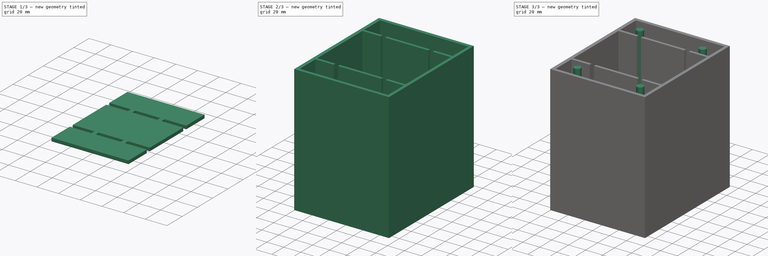
[diagram: build sequence overview — one tinted view per stage of 3, left to right]
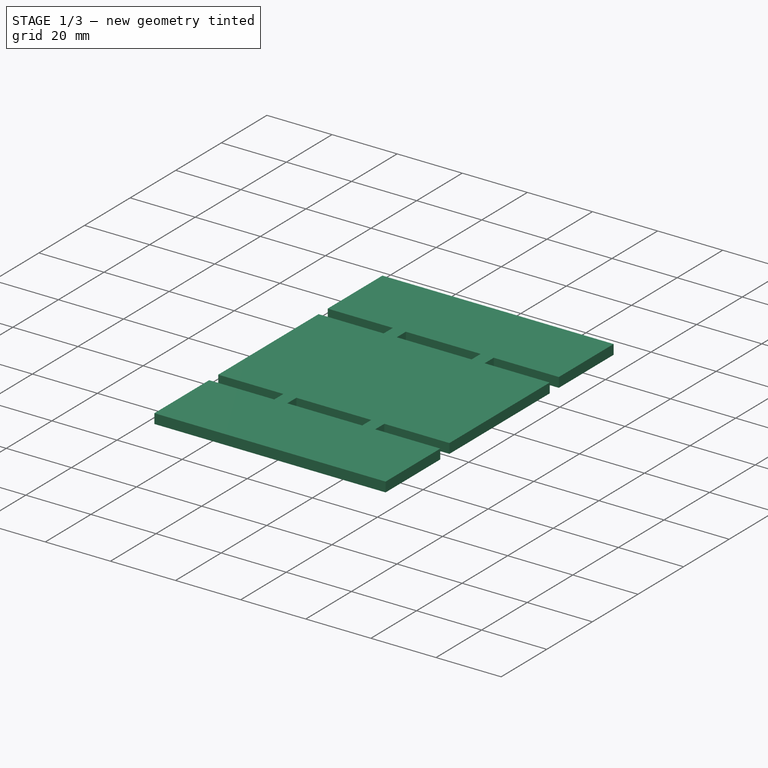
[diagram: stage 1 of 3 — iso view after this stage's code; geometry added in this stage tinted green]
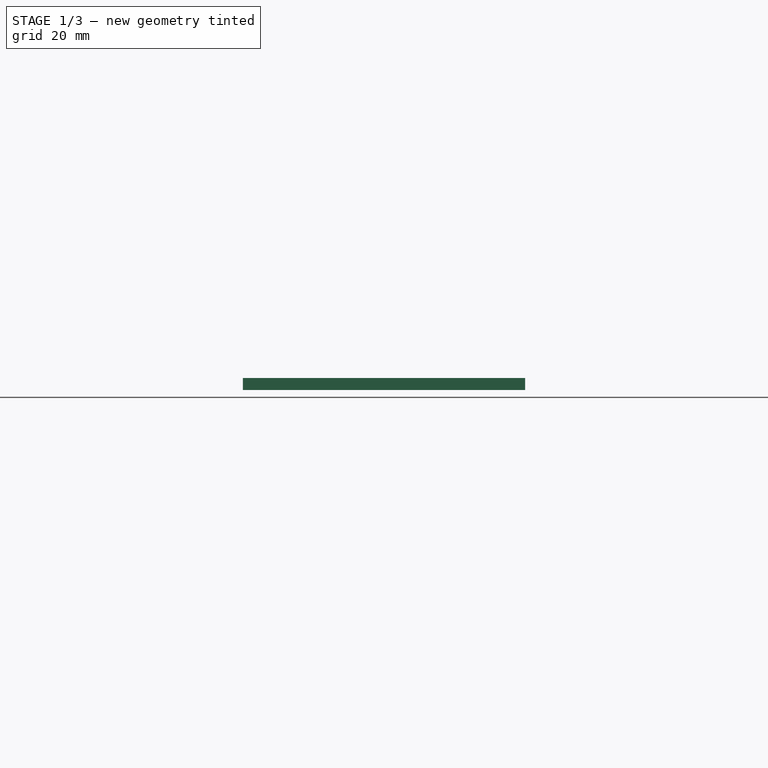
[diagram: stage 1 of 3 — front view after this stage's code; geometry added in this stage tinted green]
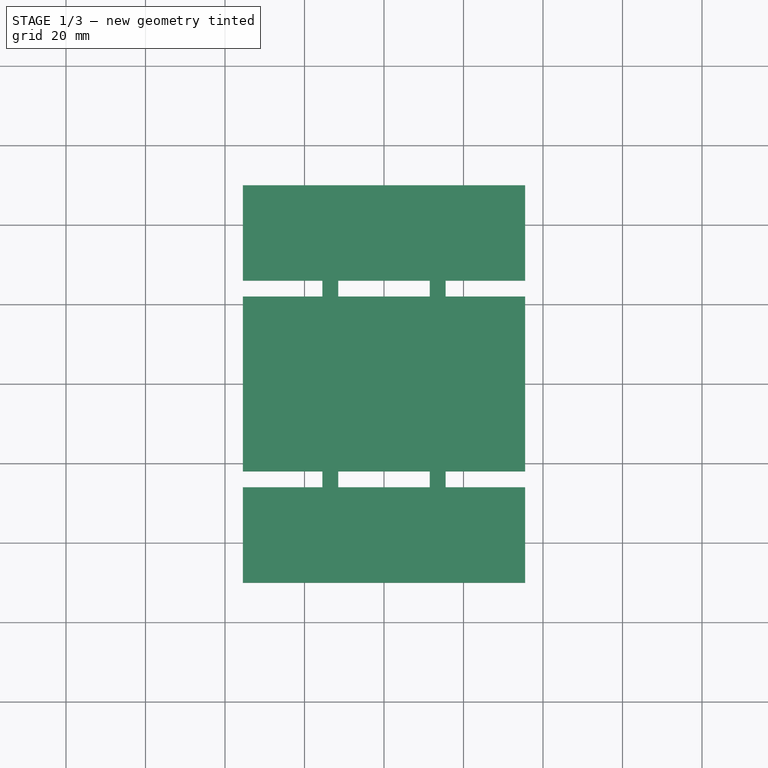
[diagram: stage 1 of 3 — top view after this stage's code; geometry added in this stage tinted green]
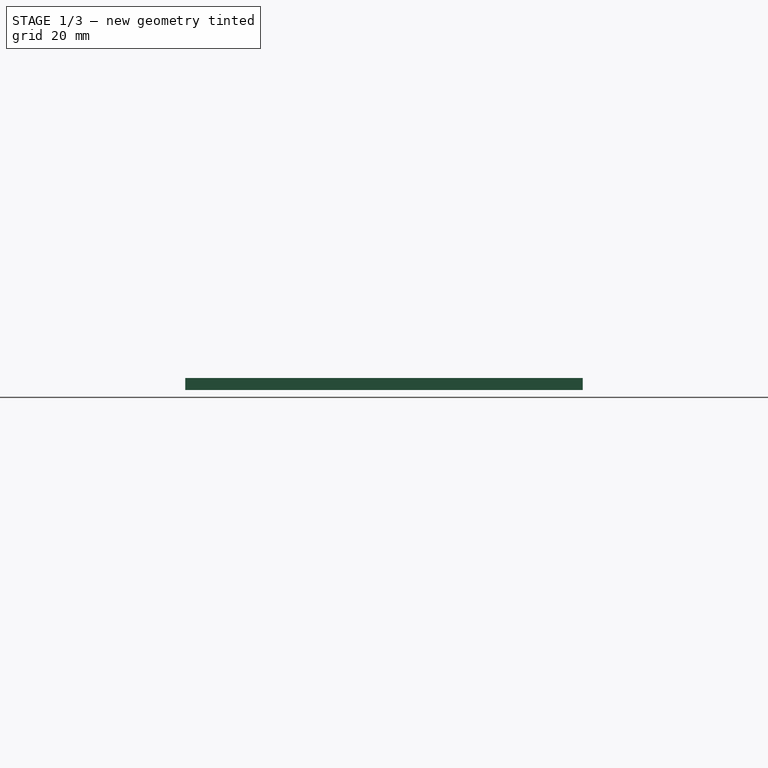
[diagram: stage 1 of 3 — right view after this stage's code; geometry added in this stage tinted green]
FCSTD DOCUMENT  (FreeCAD 0.19R)
Label: deck_in
License: All rights reserved
LicenseURL: http://en.wikipedia.org/wiki/All_rights_reserved
objects: Sketcher::SketchObject×10, PartDesign::Pad×5, PartDesign::Body×3, PartDesign::Pocket×2
note: 27 computed .brp shape members not serialized (recipe doc carries the construction recipe); baked Part::Feature solids carry a one-line shape summary decoded from their .brp

FEATURE [PartDesign::Body] Body  label="deck"
  Group = -> [Sketch002,Sketch003,Sketch,Sketch004,Sketch005,Sketch006,Sketch007,Pad001,Pocket,Pad002,Pad003]
  Origin = -> Origin
  Tip = -> Pad003
FEATURE [Sketcher::SketchObject] Sketch008  label="plateau001"
  FullyConstrained = true
  MapMode = 5
  Support = -> [XY_Plane001]
  sketch-geometry (7):
    g0: LineSegment StartX=-35.5 StartY=50 StartZ=0 EndX=35.5 EndY=50 EndZ=0
    g1: LineSegment StartX=35.5 StartY=50 StartZ=0 EndX=35.5 EndY=-50 EndZ=0
    g2: LineSegment StartX=35.5 StartY=-50 StartZ=0 EndX=-35.5 EndY=-50 EndZ=0
    g3: LineSegment StartX=-35.5 StartY=-50 StartZ=0 EndX=-35.5 EndY=50 EndZ=0
    g4: LineSegment StartX=-35.5 StartY=50 StartZ=0 EndX=35.5 EndY=-50 EndZ=0
    g5: LineSegment StartX=35.5 StartY=50 StartZ=0 EndX=-35.5 EndY=-50 EndZ=0
    g6: GeomPoint X=0 Y=0 Z=0
  constraints (17):
    c: Coincident(g0,g1)
    c: Coincident(g1,g2)
    c: Coincident(g2,g3)
    c: Coincident(g3,g0)
    c: Horizontal(g0)
    c: Horizontal(g2)
    c: Vertical(g1)
    c: Vertical(g3)
    c: DistanceY(g3,g3) = 100
    c: DistanceX(g0,g0) = 71
    c: Coincident(g4,g0)
    c: Coincident(g4,g1)
    c: Coincident(g5,g0)
    c: Coincident(g5,g2)
    c: PointOnObject(g6,g4)
    c: PointOnObject(g6,g5)
    c: Coincident(g6,g-1)
FEATURE [PartDesign::Pad] Pad004
  Direction = (1,1,100)
  Length = 3
  Length2 = 100
  Profile = -> Sketch008
  Type = 0
  expr: .Direction.z = 100
FEATURE [Sketcher::SketchObject] Sketch009  label="decoupe"
  ExternalGeometry = -> [Sketch008]
  FullyConstrained = false
  MapMode = 5
  Placement = pos=(0,0,3) rot=(0,0,1;0rad)
  Support = -> [Pad004]
  sketch-geometry (28):
    g0: LineSegment StartX=-35.5 StartY=26 StartZ=0 EndX=-15.5 EndY=26 EndZ=0
    g1: LineSegment StartX=-15.5 StartY=26 StartZ=0 EndX=-15.5 EndY=22 EndZ=0
    g2: LineSegment StartX=-15.5 StartY=22 StartZ=0 EndX=-35.5 EndY=22 EndZ=0
    g3: LineSegment StartX=-35.5 StartY=22 StartZ=0 EndX=-35.5 EndY=26 EndZ=0
    g4: LineSegment StartX=-11.5 StartY=26 StartZ=0 EndX=0 EndY=26 EndZ=0
    g5: LineSegment StartX=0 StartY=22 StartZ=0 EndX=-11.5 EndY=22 EndZ=0
    g6: LineSegment StartX=-11.5 StartY=22 StartZ=0 EndX=-11.5 EndY=26 EndZ=0
    g7: LineSegment StartX=35.5 StartY=26 StartZ=0 EndX=15.5 EndY=26 EndZ=0
    g8: LineSegment StartX=15.5 StartY=26 StartZ=0 EndX=15.5 EndY=22 EndZ=0
    g9: LineSegment StartX=15.5 StartY=22 StartZ=0 EndX=35.5 EndY=22 EndZ=0
    g10: LineSegment StartX=35.5 StartY=22 StartZ=0 EndX=35.5 EndY=26 EndZ=0
    g11: LineSegment StartX=11.5 StartY=26 StartZ=0 EndX=0 EndY=26 EndZ=0
    g12: LineSegment StartX=0 StartY=22 StartZ=0 EndX=11.5 EndY=22 EndZ=0
    g13: LineSegment StartX=11.5 StartY=22 StartZ=0 EndX=11.5 EndY=26 EndZ=0
    g14: LineSegment StartX=-35.5 StartY=-26 StartZ=0 EndX=-15.5 EndY=-26 EndZ=0
    g15: LineSegment StartX=-15.5 StartY=-26 StartZ=0 EndX=-15.5 EndY=-22 EndZ=0
    g16: LineSegment StartX=-15.5 StartY=-22 StartZ=0 EndX=-35.5 EndY=-22 EndZ=0
    g17: LineSegment StartX=-35.5 StartY=-22 StartZ=0 EndX=-35.5 EndY=-26 EndZ=0
    g18: LineSegment StartX=-11.5 StartY=-26 StartZ=0 EndX=0 EndY=-26 EndZ=0
    g19: LineSegment StartX=0 StartY=-22 StartZ=0 EndX=-11.5 EndY=-22 EndZ=0
    g20: LineSegment StartX=-11.5 StartY=-22 StartZ=0 EndX=-11.5 EndY=-26 EndZ=0
    g21: LineSegment StartX=35.5 StartY=-26 StartZ=0 EndX=15.5 EndY=-26 EndZ=0
    g22: LineSegment StartX=15.5 StartY=-26 StartZ=0 EndX=15.5 EndY=-22 EndZ=0
    g23: LineSegment StartX=15.5 StartY=-22 StartZ=0 EndX=35.5 EndY=-22 EndZ=0
    g24: LineSegment StartX=35.5 StartY=-22 StartZ=0 EndX=35.5 EndY=-26 EndZ=0
    g25: LineSegment StartX=11.5 StartY=-26 StartZ=0 EndX=0 EndY=-26 EndZ=0
    g26: LineSegment StartX=0 StartY=-22 StartZ=0 EndX=11.5 EndY=-22 EndZ=0
    g27: LineSegment StartX=11.5 StartY=-22 StartZ=0 EndX=11.5 EndY=-26 EndZ=0
  constraints (60):
    c: Coincident(g0,g1)
    c: Coincident(g1,g2)
    c: Coincident(g2,g3)
    c: Coincident(g3,g0)
    c: Horizontal(g0)
    c: Horizontal(g2)
    c: Vertical(g1)
    c: Vertical(g3)
    c: PointOnObject(g0,g-3)
    c: Coincident(g5,g6)
    c: Coincident(g6,g4)
    c: Horizontal(g4)
    c: Horizontal(g5)
    c: Vertical(g6)
    c: DistanceY(g0,g-4) = 24
    c: DistanceY(g0,g2) = -4
    c: DistanceX(g0,g0) = 20
    c: DistanceY(g0,g4) = 0
    c: DistanceY(g1,g5) = 0
    c: PointOnObject(g4,g-2)
    c: DistanceX(g0,g4) = 4
    c: Coincident(g7,g8)
    c: Coincident(g8,g9)
    c: Coincident(g9,g10)
    c: Coincident(g10,g7)
    c: Horizontal(g7)
    c: Horizontal(g9)
    c: Vertical(g8)
    c: Vertical(g10)
    c: Coincident(g12,g13)
    c: Coincident(g13,g11)
    c: Horizontal(g11)
    c: Horizontal(g12)
    c: Vertical(g13)
    c: Coincident(g14,g15)
    c: Coincident(g15,g16)
    c: Coincident(g16,g17)
    c: Coincident(g17,g14)
    c: Horizontal(g14)
    c: Horizontal(g16)
    c: Vertical(g15)
    c: Vertical(g17)
    c: Coincident(g19,g20)
    c: Coincident(g20,g18)
    c: Horizontal(g18)
    c: Horizontal(g19)
    c: Vertical(g20)
    c: Coincident(g21,g22)
    c: Coincident(g22,g23)
    c: Coincident(g23,g24)
    c: Coincident(g24,g21)
    c: Horizontal(g21)
    c: Horizontal(g23)
    c: Vertical(g22)
    c: Vertical(g24)
    c: Coincident(g26,g27)
    c: Coincident(g27,g25)
    c: Horizontal(g25)
    c: Horizontal(g26)
    c: Vertical(g27)
FEATURE [PartDesign::Pocket] Pocket001
  BaseFeature = -> Pad004
  Length = 5
  Length2 = 100
  Profile = -> Sketch009
  Type = 1
FEATURE [PartDesign::Body] Body002
  Group = -> [Sketch008,Sketch009,Pad004,Pocket001]
  Origin = -> Origin002
  Tip = -> Pocket001
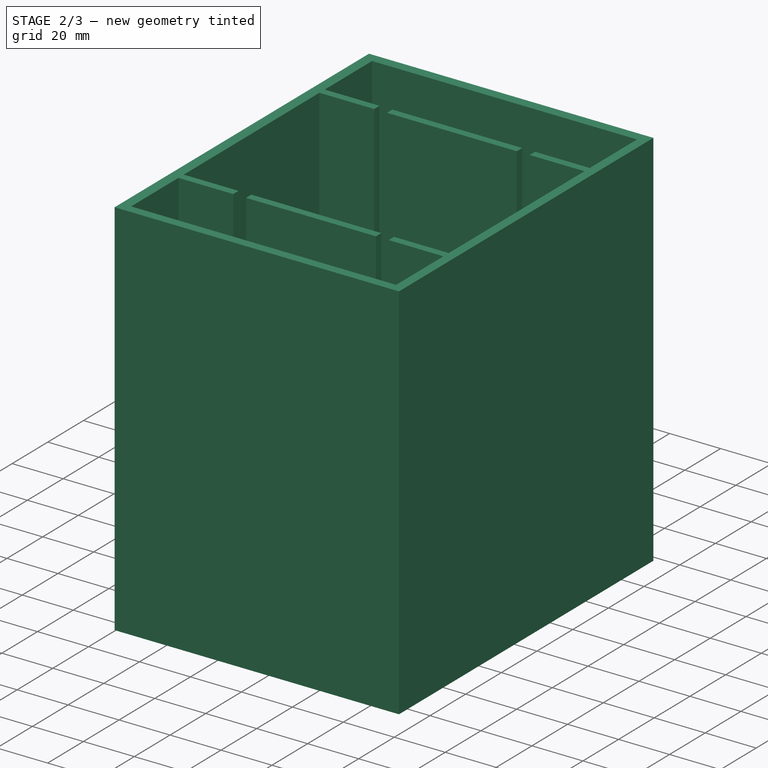
[diagram: stage 2 of 3 — iso view after this stage's code; geometry added in this stage tinted green]
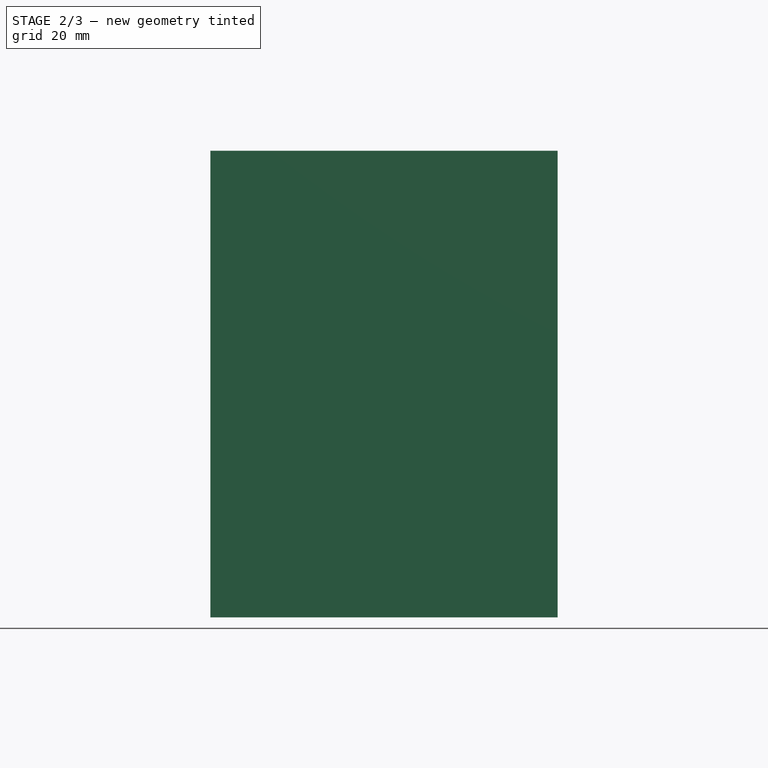
[diagram: stage 2 of 3 — front view after this stage's code; geometry added in this stage tinted green]
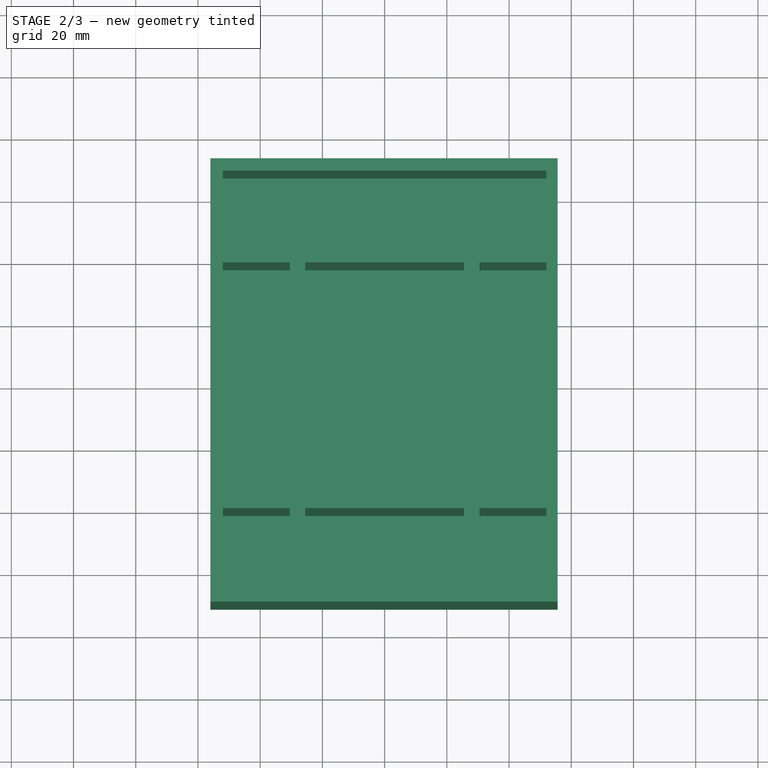
[diagram: stage 2 of 3 — top view after this stage's code; geometry added in this stage tinted green]
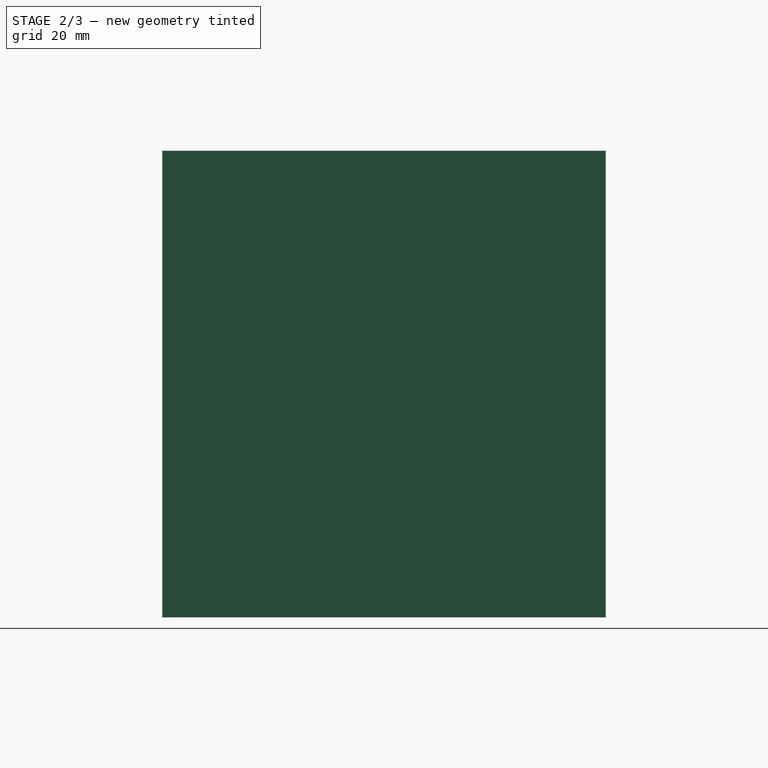
[diagram: stage 2 of 3 — right view after this stage's code; geometry added in this stage tinted green]
FEATURE [PartDesign::Body] Body001  label="card"
  Group = -> [Sketch001,Pad]
  Origin = -> Origin001
  Tip = -> Pad
FEATURE [Sketcher::SketchObject] Sketch002  label="plateau"
  FullyConstrained = true
  sketch-geometry (11):
    g0: LineSegment StartX=-50 StartY=35.5 StartZ=0 EndX=50 EndY=35.5 EndZ=0
    g1: LineSegment StartX=50 StartY=35.5 StartZ=0 EndX=50 EndY=-35.5 EndZ=0
    g2: LineSegment StartX=50 StartY=-35.5 StartZ=0 EndX=-50 EndY=-35.5 EndZ=0
    g3: LineSegment StartX=-50 StartY=-35.5 StartZ=0 EndX=-50 EndY=35.5 EndZ=0
    g4: LineSegment StartX=-50 StartY=35.5 StartZ=0 EndX=50 EndY=-35.5 EndZ=0
    g5: LineSegment StartX=50 StartY=35.5 StartZ=0 EndX=-50 EndY=-35.5 EndZ=0
    g6: GeomPoint X=0 Y=0 Z=0
    g7: LineSegment StartX=-50 StartY=65.5 StartZ=0 EndX=50 EndY=65.5 EndZ=0
    g8: LineSegment StartX=50 StartY=65.5 StartZ=0 EndX=50 EndY=-65.5 EndZ=0
    g9: LineSegment StartX=50 StartY=-65.5 StartZ=0 EndX=-50 EndY=-65.5 EndZ=0
    g10: LineSegment StartX=-50 StartY=-65.5 StartZ=0 EndX=-50 EndY=65.5 EndZ=0
  constraints (29):
    c: Coincident(g0,g1)
    c: Coincident(g1,g2)
    c: Coincident(g2,g3)
    c: Coincident(g3,g0)
    c: Horizontal(g0)
    c: Horizontal(g2)
    c: Vertical(g1)
    c: Vertical(g3)
    c: Coincident(g4,g0)
    c: Coincident(g4,g1)
    c: Coincident(g5,g2)
    c: PointOnObject(g6,g4)
    c: PointOnObject(g6,g5)
    c: Coincident(g6,g-1)
    c: Coincident(g5,g0)
    c: DistanceY(g2,g0) = 71
    c: DistanceX(g0,g0) = 100
    c: Coincident(g7,g8)
    c: Coincident(g8,g9)
    c: Coincident(g9,g10)
    c: Coincident(g10,g7)
    c: Horizontal(g7)
    c: Horizontal(g9)
    c: Vertical(g8)
    c: Vertical(g10)
    c: DistanceY(g0,g7) = 30
    c: DistanceX(g9,g2) = 0
    c: DistanceX(g8,g1) = 0
    c: DistanceY(g1,g8) = -30
FEATURE [Sketcher::SketchObject] Sketch003  label="découpe"
  ExternalGeometry = -> [Sketch002]
  FullyConstrained = false
  MapMode = 5
  Placement = pos=(0,0,150) rot=(0,0,1;0rad)
  sketch-geometry (24):
    g0: LineSegment StartX=-50 StartY=41.5 StartZ=0 EndX=-30 EndY=41.5 EndZ=0
    g1: LineSegment StartX=-30 StartY=41.5 StartZ=0 EndX=-30 EndY=37.5 EndZ=0
    g2: LineSegment StartX=-30 StartY=37.5 StartZ=0 EndX=-50 EndY=37.5 EndZ=0
    g3: LineSegment StartX=-50 StartY=37.5 StartZ=0 EndX=-50 EndY=41.5 EndZ=0
    g4: LineSegment StartX=50 StartY=41.5 StartZ=0 EndX=30 EndY=41.5 EndZ=0
    g5: LineSegment StartX=30 StartY=41.5 StartZ=0 EndX=30 EndY=37.5 EndZ=0
    g6: LineSegment StartX=30 StartY=37.5 StartZ=0 EndX=50 EndY=37.5 EndZ=0
    g7: LineSegment StartX=50 StartY=37.5 StartZ=0 EndX=50 EndY=41.5 EndZ=0
    g8: LineSegment StartX=-50 StartY=-41.5 StartZ=0 EndX=-30 EndY=-41.5 EndZ=0
    g9: LineSegment StartX=-30 StartY=-41.5 StartZ=0 EndX=-30 EndY=-37.5 EndZ=0
    g10: LineSegment StartX=-30 StartY=-37.5 StartZ=0 EndX=-50 EndY=-37.5 EndZ=0
    g11: LineSegment StartX=-50 StartY=-37.5 StartZ=0 EndX=-50 EndY=-41.5 EndZ=0
    g12: LineSegment StartX=50 StartY=-41.5 StartZ=0 EndX=30 EndY=-41.5 EndZ=0
    g13: LineSegment StartX=30 StartY=-41.5 StartZ=0 EndX=30 EndY=-37.5 EndZ=0
    g14: LineSegment StartX=30 StartY=-37.5 StartZ=0 EndX=50 EndY=-37.5 EndZ=0
    g15: LineSegment StartX=50 StartY=-37.5 StartZ=0 EndX=50 EndY=-41.5 EndZ=0
    g16: LineSegment StartX=-26 StartY=41.4901 StartZ=0 EndX=26 EndY=41.4901 EndZ=0
    g17: LineSegment StartX=26 StartY=41.4901 StartZ=0 EndX=26 EndY=37.4901 EndZ=0
    g18: LineSegment StartX=26 StartY=37.4901 StartZ=0 EndX=-26 EndY=37.4901 EndZ=0
    g19: LineSegment StartX=-26 StartY=37.4901 StartZ=0 EndX=-26 EndY=41.4901 EndZ=0
    g20: LineSegment StartX=-26 StartY=-41.4901 StartZ=0 EndX=26 EndY=-41.4901 EndZ=0
    g21: LineSegment StartX=26 StartY=-41.4901 StartZ=0 EndX=26 EndY=-37.4901 EndZ=0
    g22: LineSegment StartX=26 StartY=-37.4901 StartZ=0 EndX=-26 EndY=-37.4901 EndZ=0
    g23: LineSegment StartX=-26 StartY=-37.4901 StartZ=0 EndX=-26 EndY=-41.4901 EndZ=0
  constraints (53):
    c: Coincident(g0,g1)
    c: Coincident(g1,g2)
    c: Coincident(g2,g3)
    c: Coincident(g3,g0)
    c: Horizontal(g0)
    c: Horizontal(g2)
    c: Vertical(g1)
    c: Vertical(g3)
    c: DistanceY(g0,g-4) = 24
    c: DistanceY(g0,g2) = -4
    c: DistanceX(g2,g1) = 20
    c: PointOnObject(g2,g-4)
    c: Coincident(g4,g5)
    c: Coincident(g5,g6)
    c: Coincident(g6,g7)
    c: Coincident(g7,g4)
    c: Horizontal(g4)
    c: Horizontal(g6)
    c: Vertical(g5)
    c: Vertical(g7)
    c: Coincident(g8,g9)
    c: Coincident(g9,g10)
    c: Coincident(g10,g11)
    c: Coincident(g11,g8)
    c: Horizontal(g8)
    c: Horizontal(g10)
    c: Vertical(g9)
    c: Vertical(g11)
    c: Coincident(g12,g13)
    c: Coincident(g13,g14)
    c: Coincident(g14,g15)
    c: Coincident(g15,g12)
    c: Horizontal(g12)
    c: Horizontal(g14)
    c: Vertical(g13)
    c: Vertical(g15)
    c: Coincident(g16,g17)
    c: Coincident(g17,g18)
    c: Coincident(g18,g19)
    c: Coincident(g19,g16)
    c: Horizontal(g18)
    c: Vertical(g17)
    c: Vertical(g19)
    c: DistanceY(g16,g18) = -4
    c: Symmetric(g16,g16,g-2)
    c: DistanceX(g16,g16) = 52
    c: Coincident(g20,g21)
    c: Coincident(g21,g22)
    c: Coincident(g22,g23)
    c: Coincident(g23,g20)
    c: Horizontal(g22)
    c: Vertical(g21)
    c: Vertical(g23)
FEATURE [Sketcher::SketchObject] Sketch  label="CONTOUR"
  ExternalGeometry = -> [Sketch003]
  FullyConstrained = false
  MapMode = 5
  Support = -> [XY_Plane]
  sketch-geometry (38):
    g0: LineSegment StartX=-52 StartY=67.5 StartZ=0 EndX=52 EndY=67.5 EndZ=0
    g1: LineSegment StartX=52 StartY=-67.5 StartZ=0 EndX=-52 EndY=-67.5 EndZ=0
    g2: LineSegment StartX=-25.5 StartY=40.9901 StartZ=0 EndX=25.5 EndY=40.9901 EndZ=0
    g3: LineSegment StartX=25.5 StartY=40.9901 StartZ=0 EndX=25.5 EndY=37.9901 EndZ=0
    g4: LineSegment StartX=25.5 StartY=37.9901 StartZ=0 EndX=-25.5 EndY=37.9901 EndZ=0
    g5: LineSegment StartX=-25.5 StartY=37.9901 StartZ=0 EndX=-25.5 EndY=40.9901 EndZ=0
    g6: LineSegment StartX=30.5 StartY=41 StartZ=0 EndX=52 EndY=41 EndZ=0
    g7: LineSegment StartX=52 StartY=38 StartZ=0 EndX=30.5 EndY=38 EndZ=0
    g8: LineSegment StartX=30.5 StartY=38 StartZ=0 EndX=30.5 EndY=41 EndZ=0
    g9: LineSegment StartX=-52 StartY=41 StartZ=0 EndX=-30.5 EndY=41 EndZ=0
    g10: LineSegment StartX=-30.5 StartY=41 StartZ=0 EndX=-30.5 EndY=38 EndZ=0
    g11: LineSegment StartX=-25.5 StartY=-40.9901 StartZ=0 EndX=25.5 EndY=-40.9901 EndZ=0
    g12: LineSegment StartX=25.5 StartY=-40.9901 StartZ=0 EndX=25.5 EndY=-37.9901 EndZ=0
    g13: LineSegment StartX=25.5 StartY=-37.9901 StartZ=0 EndX=-25.5 EndY=-37.9901 EndZ=0
    g14: LineSegment StartX=-25.5 StartY=-37.9901 StartZ=0 EndX=-25.5 EndY=-40.9901 EndZ=0
    g15: LineSegment StartX=30.5 StartY=-41 StartZ=0 EndX=52 EndY=-41 EndZ=0
    g16: LineSegment StartX=52 StartY=-38 StartZ=0 EndX=30.5 EndY=-38 EndZ=0
    g17: LineSegment StartX=30.5 StartY=-38 StartZ=0 EndX=30.5 EndY=-41 EndZ=0
    g18: LineSegment StartX=-52 StartY=-41 StartZ=0 EndX=-30.5 EndY=-41 EndZ=0
    g19: LineSegment StartX=-30.5 StartY=-41 StartZ=0 EndX=-30.5 EndY=-38 EndZ=0
    g20: LineSegment StartX=-30.5 StartY=-38 StartZ=0 EndX=-52 EndY=-38 EndZ=0
    g21: Circle CenterX=-37 CenterY=-52.5 CenterZ=0 NormalX=0 NormalY=0 NormalZ=1 AngleXU=0 Radius=4
    g22: Circle CenterX=37 CenterY=-52.5 CenterZ=0 NormalX=0 NormalY=0 NormalZ=1 AngleXU=0 Radius=4
    g23: Circle CenterX=-37 CenterY=52.5 CenterZ=0 NormalX=0 NormalY=0 NormalZ=1 AngleXU=0 Radius=4
    g24: Circle CenterX=37 CenterY=52.5 CenterZ=0 NormalX=0 NormalY=0 NormalZ=1 AngleXU=0 Radius=4
    g25: LineSegment StartX=-56 StartY=71.5 StartZ=0 EndX=55.6057 EndY=71.5 EndZ=0
    g26: LineSegment StartX=55.6057 StartY=71.5 StartZ=0 EndX=55.6057 EndY=-71.0723 EndZ=0
    g27: LineSegment StartX=55.6057 StartY=-71.0723 StartZ=0 EndX=-56 EndY=-71.0723 EndZ=0
    g28: LineSegment StartX=-56 StartY=-71.0723 StartZ=0 EndX=-56 EndY=71.5 EndZ=0
    g29: LineSegment StartX=-52 StartY=-41 StartZ=0 EndX=-52 EndY=-67.5 EndZ=0
    g30: LineSegment StartX=-52 StartY=38 StartZ=0 EndX=-52 EndY=-38 EndZ=0
    g31: LineSegment StartX=-30.5 StartY=41 StartZ=0 EndX=-52 EndY=41 EndZ=0
    g32: LineSegment StartX=-52 StartY=-67.5 StartZ=0 EndX=52 EndY=-67.5 EndZ=0
    g33: LineSegment StartX=52 StartY=-38 StartZ=0 EndX=52 EndY=38 EndZ=0
    g34: LineSegment StartX=52 StartY=67.5 StartZ=0 EndX=52 EndY=41 EndZ=0
    g35: LineSegment StartX=-52 StartY=67.5 StartZ=0 EndX=-52 EndY=41 EndZ=0
    g36: LineSegment StartX=52 StartY=-41 StartZ=0 EndX=52 EndY=-67.5 EndZ=0
    g37: LineSegment StartX=-30.5 StartY=38 StartZ=0 EndX=-52 EndY=38 EndZ=0
  constraints (54):
    c: Horizontal(g0)
    c: DistanceY(g1,g-4) = 26
    c: Coincident(g2,g3)
    c: Coincident(g3,g4)
    c: Coincident(g4,g5)
    c: Coincident(g5,g2)
    c: Horizontal(g2)
    c: Horizontal(g4)
    c: Vertical(g3)
    c: Vertical(g5)
    c: DistanceX(g-14,g2) = 0.5
    c: DistanceY(g2,g-14) = 0.5
    c: DistanceY(g4,g2) = 3
    c: DistanceX(g2,g-13) = 0.5
    c: Coincident(g11,g12)
    c: Coincident(g12,g13)
    c: Coincident(g13,g14)
    c: Coincident(g14,g11)
    c: Horizontal(g11)
    c: Horizontal(g13)
    c: Vertical(g12)
    c: Vertical(g14)
    c: Horizontal(g18)
    c: Vertical(g19)
    c: DistanceX(g1,g21) = 15
    c: DistanceY(g1,g21) = 15
    c: Radius(g21) = 4
    c: Radius(g22) = 4
    c: Radius(g23) = 4
    c: Radius(g24) = 4
    c: Coincident(g25,g26)
    c: Coincident(g26,g27)
    c: Coincident(g27,g28)
    c: Coincident(g28,g25)
    c: Horizontal(g25)
    c: Horizontal(g27)
    c: Vertical(g26)
    c: Vertical(g28)
    c: DistanceX(g25,g0) = 4
    c: DistanceY(g0,g25) = 4
    c: Vertical(g29)
    c: Coincident(g1,g32)
    c: Coincident(g9,g31)
    c: Coincident(g35,g0)
    c: Coincident(g35,g9)
    c: Vertical(g35)
    c: Coincident(g17,g16)
    c: Coincident(g16,g33)
    c: Coincident(g36,g15)
    c: Coincident(g36,g1)
    c: Vertical(g36)
    c: Coincident(g37,g10)
    c: Coincident(g37,g30)
    c: Horizontal(g37)
FEATURE [Sketcher::SketchObject] Sketch006  label="cloison ext"
  ExternalGeometry = -> [Sketch]
  FullyConstrained = true
  MapMode = 5
  Support = -> [XY_Plane]
  sketch-geometry (4):
    g0: LineSegment StartX=-56 StartY=71.5 StartZ=0 EndX=55.6057 EndY=71.5 EndZ=0
    g1: LineSegment StartX=55.6057 StartY=71.5 StartZ=0 EndX=55.6057 EndY=-71.0723 EndZ=0
    g2: LineSegment StartX=55.6057 StartY=-71.0723 StartZ=0 EndX=-56 EndY=-71.0723 EndZ=0
    g3: LineSegment StartX=-56 StartY=-71.0723 StartZ=0 EndX=-56 EndY=71.5 EndZ=0
  constraints (10):
    c: Coincident(g0,g1)
    c: Coincident(g1,g2)
    c: Coincident(g2,g3)
    c: Coincident(g3,g0)
    c: Horizontal(g0)
    c: Horizontal(g2)
    c: Vertical(g1)
    c: Vertical(g3)
    c: Coincident(g-4,g1)
    c: Coincident(g0,g-3)
FEATURE [PartDesign::Pad] Pad001
  Direction = (1,1,1)
  Length = 150
  Length2 = 100
  Profile = -> Sketch006
  Type = 0
FEATURE [Sketcher::SketchObject] Sketch007  label="cloison int"
  ExternalGeometry = -> [Sketch]
  FullyConstrained = true
  MapMode = 5
  Placement = pos=(0,0,150) rot=(0,0,1;0rad)
  Support = -> [Pad001]
  sketch-geometry (20):
    g0: LineSegment StartX=-52 StartY=67.5 StartZ=0 EndX=-52 EndY=41 EndZ=0
    g1: LineSegment StartX=-52 StartY=41 StartZ=0 EndX=-30.5 EndY=41 EndZ=0
    g2: LineSegment StartX=-30.5 StartY=41 StartZ=0 EndX=-30.5 EndY=38 EndZ=0
    g3: LineSegment StartX=-30.5 StartY=38 StartZ=0 EndX=-52 EndY=38 EndZ=0
    g4: LineSegment StartX=-52 StartY=38 StartZ=0 EndX=-52 EndY=-38 EndZ=0
    g5: LineSegment StartX=-52 StartY=-38 StartZ=0 EndX=-30.5 EndY=-38 EndZ=0
    g6: LineSegment StartX=-30.5 StartY=-38 StartZ=0 EndX=-30.5 EndY=-41 EndZ=0
    g7: LineSegment StartX=-30.5 StartY=-41 StartZ=0 EndX=-52 EndY=-41 EndZ=0
    g8: LineSegment StartX=-52 StartY=-41 StartZ=0 EndX=-52 EndY=-67.5 EndZ=0
    g9: LineSegment StartX=-52 StartY=-67.5 StartZ=0 EndX=52 EndY=-67.5 EndZ=0
    g10: LineSegment StartX=52 StartY=-67.5 StartZ=0 EndX=52 EndY=-41 EndZ=0
    g11: LineSegment StartX=52 StartY=-41 StartZ=0 EndX=30.5 EndY=-41 EndZ=0
    g12: LineSegment StartX=30.5 StartY=-41 StartZ=0 EndX=30.5 EndY=-38 EndZ=0
    g13: LineSegment StartX=30.5 StartY=-38 StartZ=0 EndX=52 EndY=-38 EndZ=0
    g14: LineSegment StartX=52 StartY=-38 StartZ=0 EndX=52 EndY=38 EndZ=0
    g15: LineSegment StartX=52 StartY=38 StartZ=0 EndX=30.5 EndY=38 EndZ=0
    g16: LineSegment StartX=30.5 StartY=38 StartZ=0 EndX=30.5 EndY=41 EndZ=0
    g17: LineSegment StartX=30.5 StartY=41 StartZ=0 EndX=52 EndY=41 EndZ=0
    g18: LineSegment StartX=52 StartY=41 StartZ=0 EndX=52 EndY=67.5 EndZ=0
    g19: LineSegment StartX=52 StartY=67.5 StartZ=0 EndX=-52 EndY=67.5 EndZ=0
  constraints (40):
    c: Coincident(g-5,g0)
    c: Coincident(g0,g-3)
    c: Coincident(g0,g1)
    c: Coincident(g1,g-3)
    c: Coincident(g1,g2)
    c: Coincident(g2,g-4)
    c: Coincident(g2,g3)
    c: Coincident(g3,g-4)
    c: Coincident(g3,g4)
    c: Coincident(g4,g-12)
    c: Coincident(g4,g5)
    c: Coincident(g5,g-12)
    c: Coincident(g5,g6)
    c: Coincident(g6,g-11)
    c: Coincident(g6,g7)
    c: Coincident(g7,g-11)
    c: Coincident(g7,g8)
    c: Coincident(g8,g-10)
    c: Coincident(g8,g9)
    c: Coincident(g9,g-10)
    c: Coincident(g9,g10)
    c: Coincident(g10,g-9)
    c: Coincident(g10,g11)
    c: Coincident(g11,g-9)
    c: Coincident(g11,g12)
    c: Coincident(g12,g-8)
    c: Coincident(g12,g13)
    c: Coincident(g13,g-8)
    c: Coincident(g13,g14)
    c: Coincident(g14,g-7)
    c: Coincident(g14,g15)
    c: Coincident(g15,g-7)
    c: Coincident(g15,g16)
    c: Coincident(g16,g-6)
    c: Coincident(g16,g17)
    c: Coincident(g17,g-6)
    c: Coincident(g17,g18)
    c: Coincident(g18,g-5)
    c: Coincident(g18,g19)
    c: Coincident(g19,g0)
FEATURE [PartDesign::Pocket] Pocket
  BaseFeature = -> Pad001
  Length = 145
  Length2 = 100
  Profile = -> Sketch007
  Type = 0
FEATURE [Sketcher::SketchObject] Sketch005  label="mur int"
  ExternalGeometry = -> [Sketch]
  FullyConstrained = true
  MapMode = 5
  Placement = pos=(0,0,5) rot=(0,0,1;0rad)
  Support = -> [Pocket]
  sketch-geometry (8):
    g0: LineSegment StartX=-25.5 StartY=40.9901 StartZ=0 EndX=25.5 EndY=40.9901 EndZ=0
    g1: LineSegment StartX=25.5 StartY=40.9901 StartZ=0 EndX=25.5 EndY=37.9901 EndZ=0
    g2: LineSegment StartX=25.5 StartY=37.9901 StartZ=0 EndX=-25.5 EndY=37.9901 EndZ=0
    g3: LineSegment StartX=-25.5 StartY=37.9901 StartZ=0 EndX=-25.5 EndY=40.9901 EndZ=0
    g4: LineSegment StartX=-25.5 StartY=-37.9901 StartZ=0 EndX=25.5 EndY=-37.9901 EndZ=0
    g5: LineSegment StartX=25.5 StartY=-37.9901 StartZ=0 EndX=25.5 EndY=-40.9901 EndZ=0
    g6: LineSegment StartX=25.5 StartY=-40.9901 StartZ=0 EndX=-25.5 EndY=-40.9901 EndZ=0
    g7: LineSegment StartX=-25.5 StartY=-40.9901 StartZ=0 EndX=-25.5 EndY=-37.9901 EndZ=0
  constraints (20):
    c: Coincident(g0,g1)
    c: Coincident(g1,g2)
    c: Coincident(g2,g3)
    c: Coincident(g3,g0)
    c: Horizontal(g0)
    c: Horizontal(g2)
    c: Vertical(g1)
    c: Vertical(g3)
    c: Coincident(g0,g-3)
    c: Coincident(g1,g-4)
    c: Coincident(g4,g5)
    c: Coincident(g5,g6)
    c: Coincident(g6,g7)
    c: Coincident(g7,g4)
    c: Horizontal(g4)
    c: Horizontal(g6)
    c: Vertical(g5)
    c: Vertical(g7)
    c: Coincident(g4,g-5)
    c: Coincident(g5,g-6)
FEATURE [PartDesign::Pad] Pad002
  BaseFeature = -> Pocket
  Direction = (1,1,1)
  Length = 145
  Length2 = 100
  Profile = -> Sketch005
  Type = 0
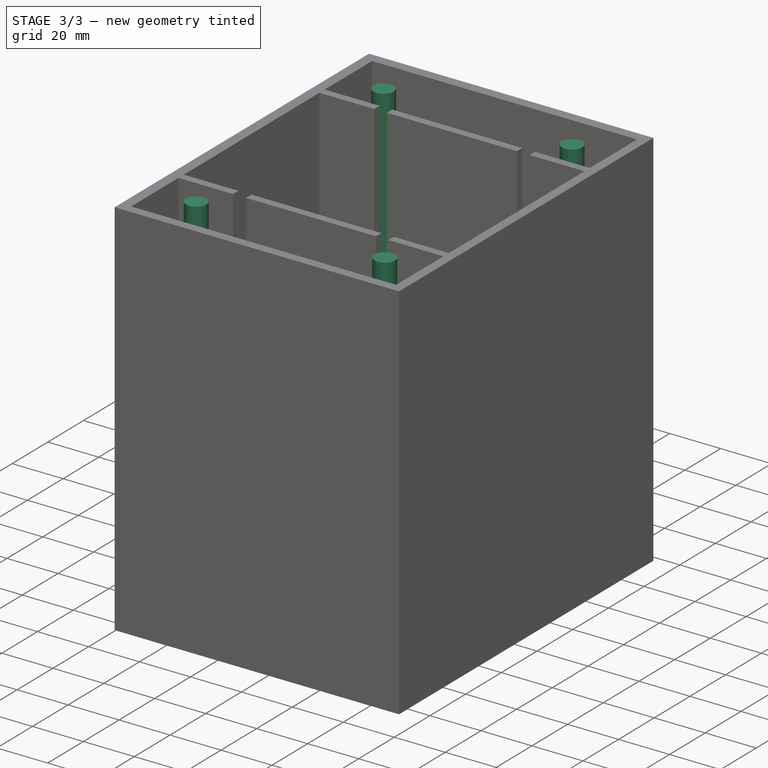
[diagram: stage 3 of 3 — iso view after this stage's code; geometry added in this stage tinted green]
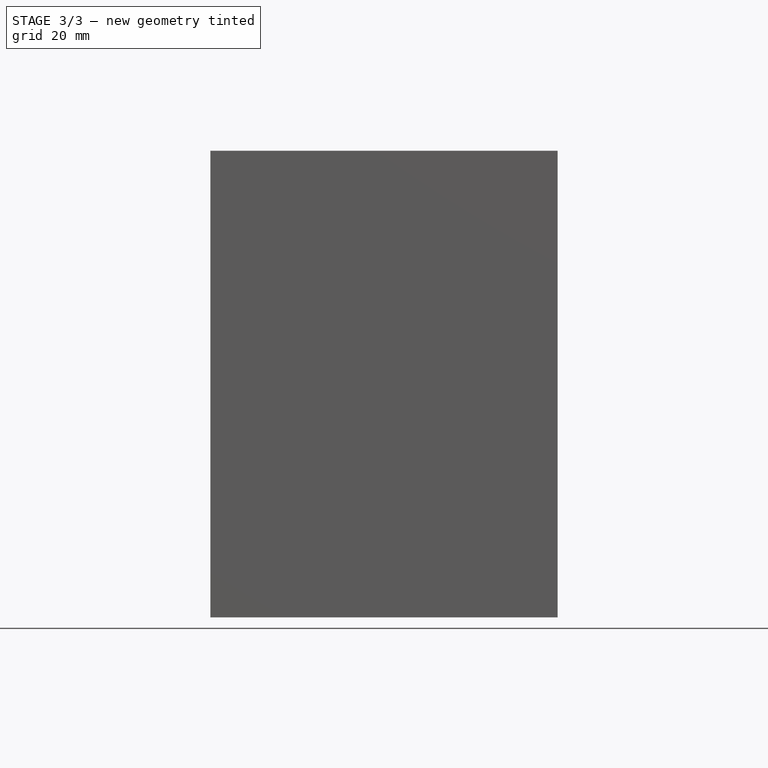
[diagram: stage 3 of 3 — front view after this stage's code; geometry added in this stage tinted green]
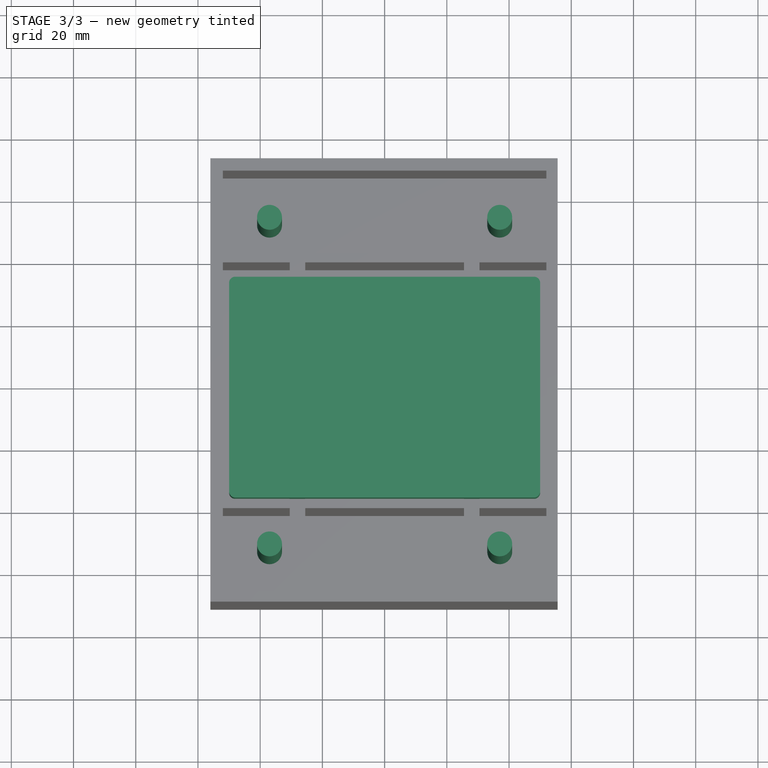
[diagram: stage 3 of 3 — top view after this stage's code; geometry added in this stage tinted green]
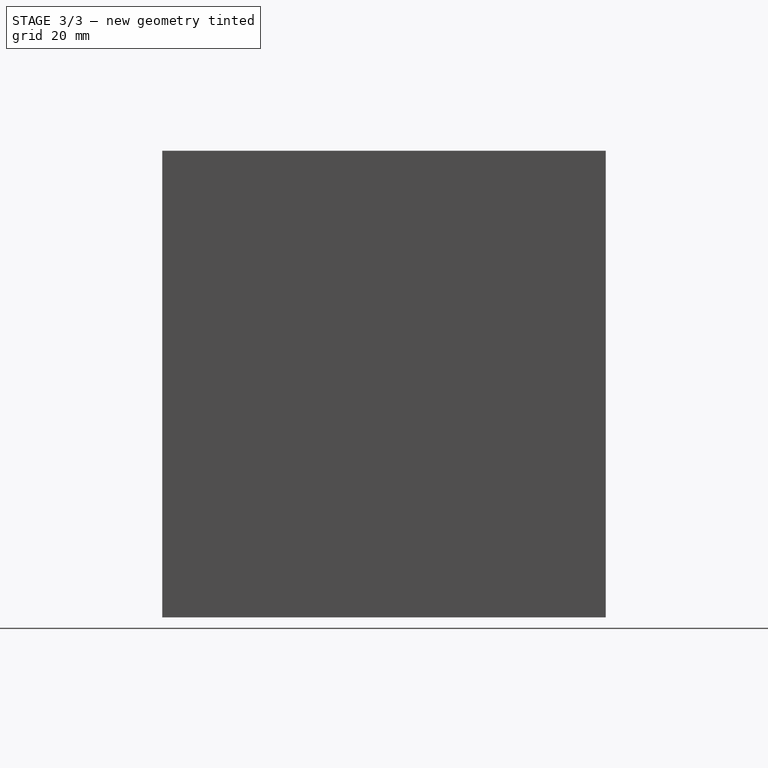
[diagram: stage 3 of 3 — right view after this stage's code; geometry added in this stage tinted green]
FEATURE [Sketcher::SketchObject] Sketch001
  FullyConstrained = true
  sketch-geometry (15):
    g0: LineSegment StartX=-48 StartY=35.5 StartZ=0 EndX=48 EndY=35.5 EndZ=0
    g1: LineSegment StartX=50 StartY=33.5 StartZ=0 EndX=50 EndY=-33.5 EndZ=0
    g2: LineSegment StartX=48 StartY=-35.5 StartZ=0 EndX=-48 EndY=-35.5 EndZ=0
    g3: LineSegment StartX=-50 StartY=-33.5 StartZ=0 EndX=-50 EndY=33.5 EndZ=0
    g4: LineSegment StartX=-50 StartY=35.5 StartZ=0 EndX=50 EndY=-35.5 EndZ=0
    g5: LineSegment StartX=50 StartY=35.5 StartZ=0 EndX=-50 EndY=-35.5 EndZ=0
    g6: GeomPoint X=0 Y=0 Z=0
    g7: ArcOfCircle CenterX=-48 CenterY=33.5 CenterZ=0 NormalX=0 NormalY=0 NormalZ=1 AngleXU=0 Radius=2 StartAngle=1.5708 EndAngle=3.14159
    g8: GeomPoint X=-50 Y=35.5 Z=0
    g9: ArcOfCircle CenterX=48 CenterY=33.5 CenterZ=0 NormalX=0 NormalY=0 NormalZ=1 AngleXU=0 Radius=2 StartAngle=1e-16 EndAngle=1.5708
    g10: GeomPoint X=50 Y=35.5 Z=0
    g11: ArcOfCircle CenterX=48 CenterY=-33.5 CenterZ=0 NormalX=0 NormalY=0 NormalZ=1 AngleXU=0 Radius=2 StartAngle=4.71239 EndAngle=6.28319
    g12: GeomPoint X=50 Y=-35.5 Z=0
    g13: ArcOfCircle CenterX=-48 CenterY=-33.5 CenterZ=0 NormalX=0 NormalY=0 NormalZ=1 AngleXU=0 Radius=2 StartAngle=3.14159 EndAngle=4.71239
    g14: GeomPoint X=-50 Y=-35.5 Z=0
  constraints (33):
    c: Horizontal(g0)
    c: Horizontal(g2)
    c: Vertical(g1)
    c: Vertical(g3)
    c: Coincident(g4,g8)
    c: Coincident(g4,g12)
    c: Coincident(g5,g10)
    c: Coincident(g5,g14)
    c: PointOnObject(g6,g4)
    c: PointOnObject(g6,g5)
    c: Coincident(g6,g-1)
    c: DistanceX(g8,g10) = 100
    c: DistanceY(g12,g10) = 71
    c: PointOnObject(g8,g0)
    c: PointOnObject(g8,g3)
    c: Tangent(g0,g7) = 1.5708
    c: Tangent(g3,g7) = 1.5708
    c: Radius(g7) = 2
    c: PointOnObject(g10,g1)
    c: PointOnObject(g10,g0)
    c: Tangent(g1,g9) = 1.5708
    c: Tangent(g0,g9) = 1.5708
    c: Radius(g9) = 2
    c: PointOnObject(g12,g1)
    c: PointOnObject(g12,g2)
    c: Tangent(g1,g11) = 1.5708
    c: Tangent(g2,g11) = 1.5708
    c: Radius(g11) = 2
    c: PointOnObject(g14,g2)
    c: PointOnObject(g14,g3)
    c: Tangent(g2,g13) = 1.5708
    c: Tangent(g3,g13) = 1.5708
    c: Radius(g13) = 2
FEATURE [PartDesign::Pad] Pad
  Direction = (1,1,1)
  Length = 30
  Length2 = 100
  Profile = -> Sketch001
  Type = 0
FEATURE [Sketcher::SketchObject] Sketch004  label="colonne"
  ExternalGeometry = -> [Sketch]
  FullyConstrained = false
  MapMode = 5
  Placement = pos=(0,0,5) rot=(0,0,1;0rad)
  Support = -> [Pad002]
  sketch-geometry (4):
    g0: Circle CenterX=-37 CenterY=-52.5 CenterZ=0 NormalX=0 NormalY=0 NormalZ=1 AngleXU=0 Radius=4
    g1: Circle CenterX=37 CenterY=-52.5 CenterZ=0 NormalX=0 NormalY=0 NormalZ=1 AngleXU=0 Radius=4
    g2: Circle CenterX=-37 CenterY=52.5 CenterZ=0 NormalX=0 NormalY=0 NormalZ=1 AngleXU=0 Radius=4
    g3: Circle CenterX=37 CenterY=52.5 CenterZ=0 NormalX=0 NormalY=0 NormalZ=1 AngleXU=0 Radius=4
  constraints (6):
    c: Radius(g0) = 4
    c: Radius(g1) = 4
    c: Coincident(g2,g-6)
    c: Coincident(g3,g-7)
    c: Radius(g3) = 4
    c: Radius(g2) = 4
FEATURE [PartDesign::Pad] Pad003
  BaseFeature = -> Pad002
  Direction = (1,1,1)
  Length = 145
  Length2 = 100
  Profile = -> Sketch004
  Type = 0
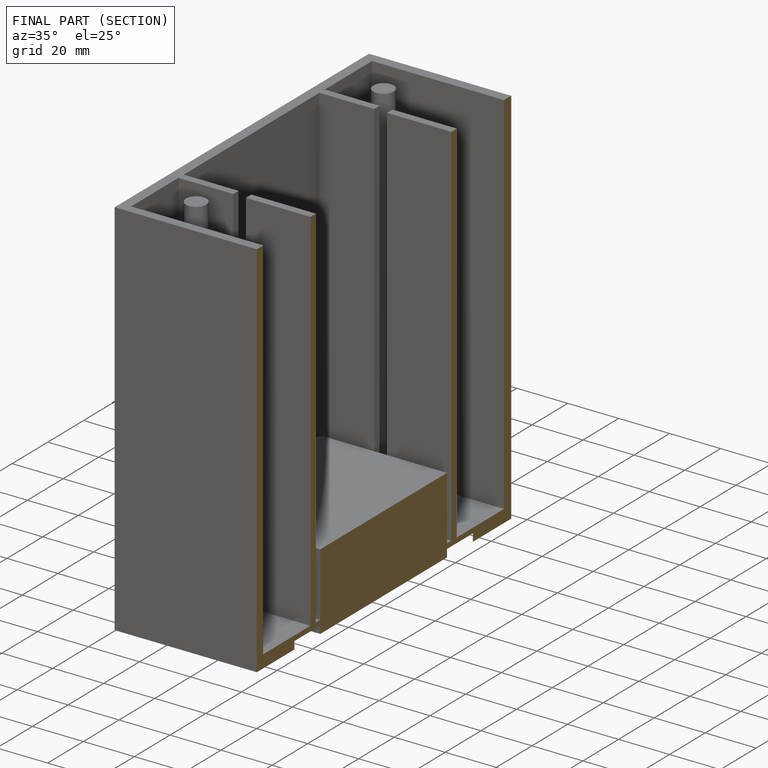
[diagram: finished part — half-section view (interior)]
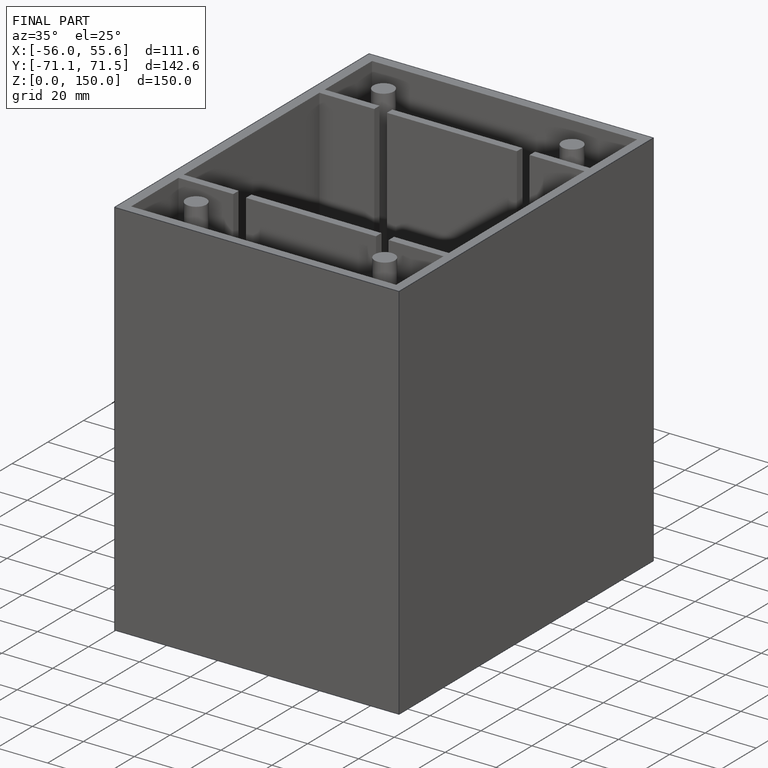
[diagram: finished part — iso view with bounding-box wireframe]
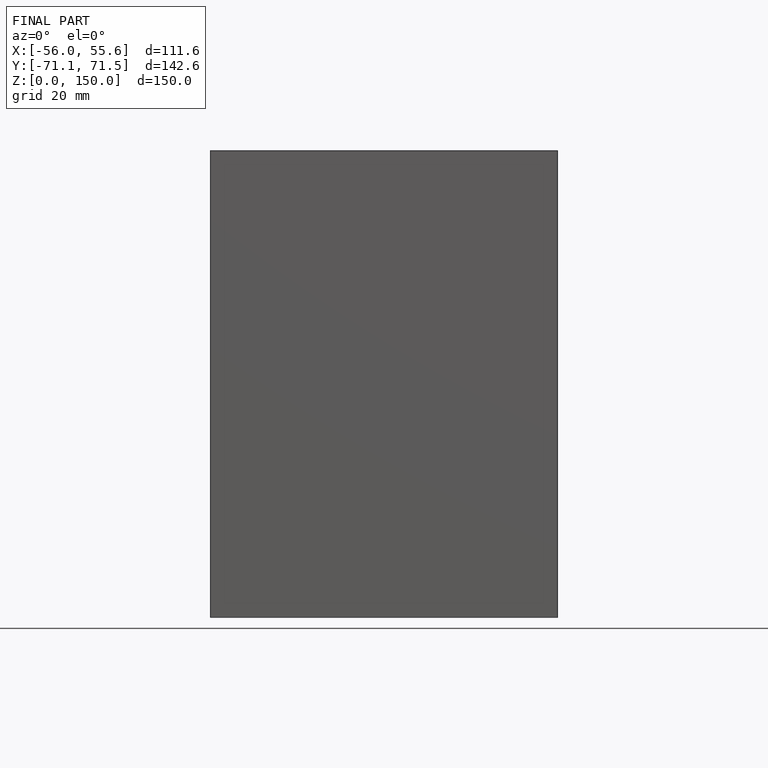
[diagram: finished part — front view with bounding-box wireframe]
